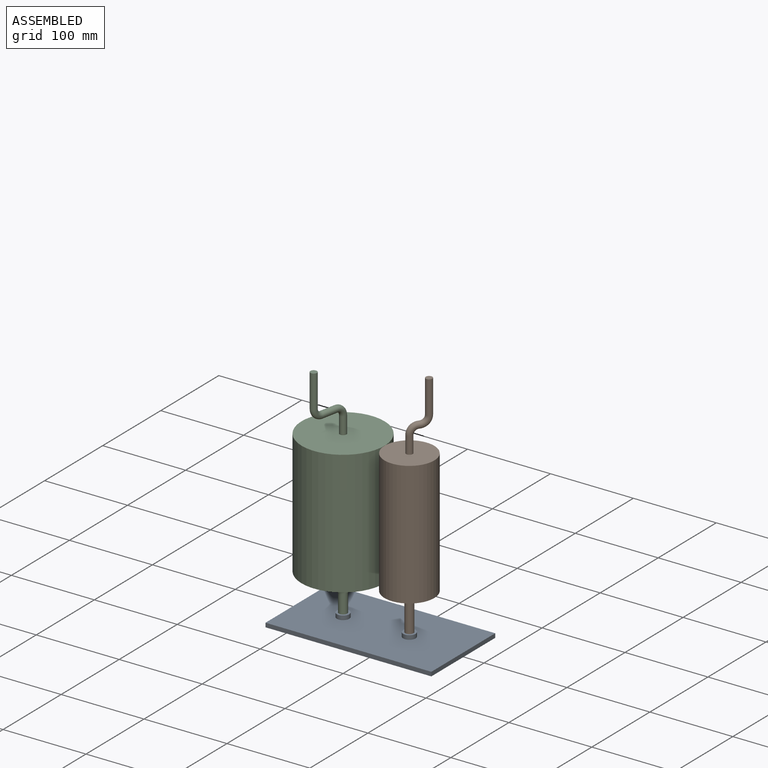
[diagram: assembled view]
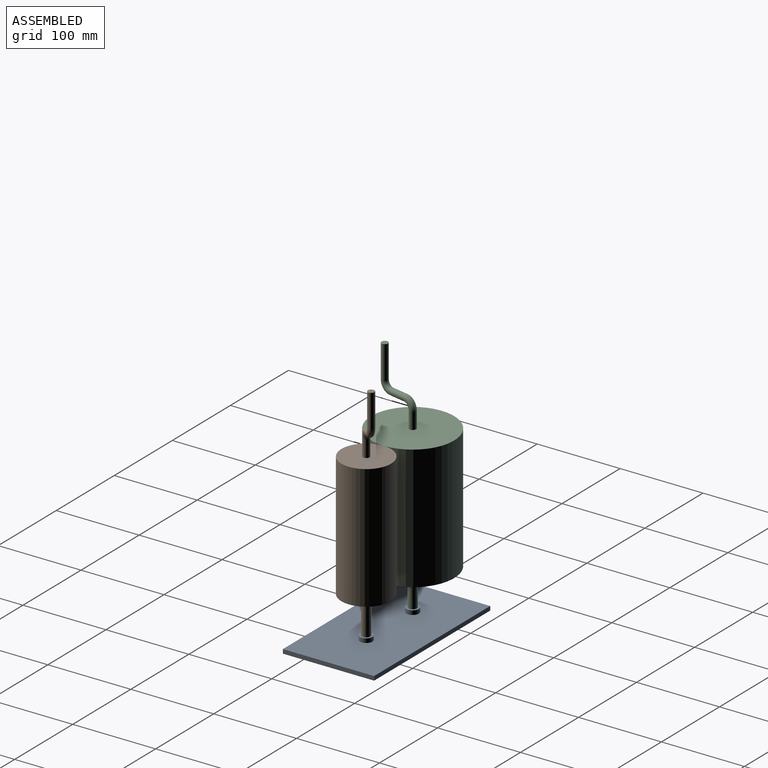
[diagram: assembled view, second angle]
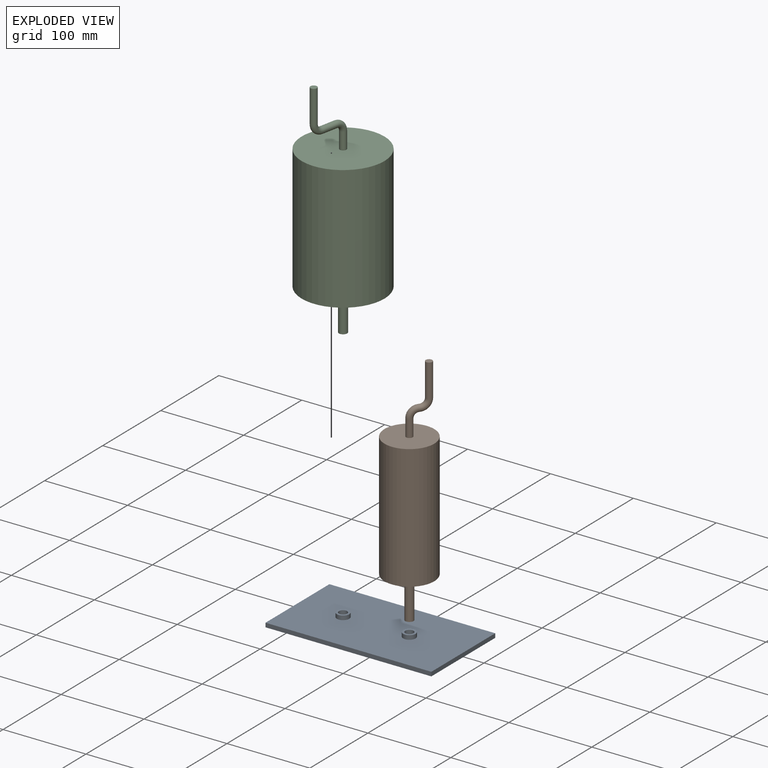
[diagram: exploded view]
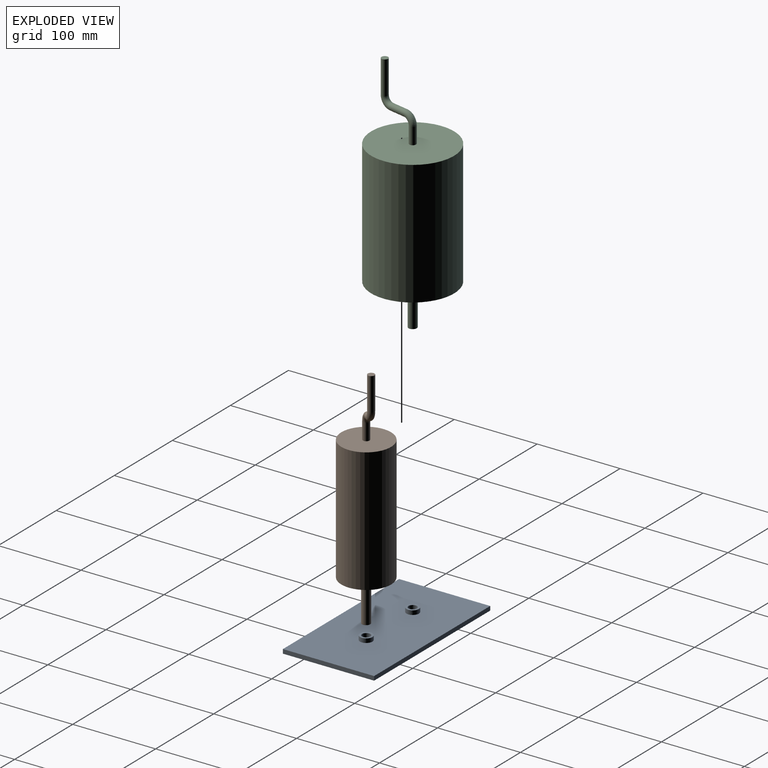
[diagram: exploded view, second angle]
ASSEMBLY  parts=3 mates=2
PART A: 14 faces, bbox 200x110x10 mm
  f0: plane 200x5mm, normal (0,-1,0), area 1000mm2, adj f1,f3,f4,f5
  f1: plane 110x5mm, normal (1,0,0), area 550mm2, adj f0,f2,f4,f5
  f2: plane 200x5mm, normal (0,1,0), area 1000mm2, adj f1,f3,f4,f5
  f3: plane 110x5mm, normal (-1,0,0), area 550mm2, adj f0,f2,f4,f5
  f4: plane 200x110mm, normal (0,0,-1), area 22000mm2, adj f0,f1,f2,f3
  f5: plane 200x110mm, normal (0,0,1), area 21646.6mm2, adj f0,f1,f2,f3,f7,f11
  f6: cylinder r=5mm len=10mm, axis (0,0,-1), area 157.1mm2, adj f8,f9
  f7: cylinder r=7.5mm len=15mm, axis (0,0,-1), area 235.6mm2, adj f5,f8
  f8: plane 15x15mm, normal (0,0,1), area 98.2mm2, adj f6,f7
  f9: plane 10x10mm, normal (0,0,1), area 78.5mm2, adj f6
  f10: cylinder r=5mm len=10mm, axis (0,0,-1), area 157.1mm2, adj f12,f13
  f11: cylinder r=7.5mm len=15mm, axis (0,0,-1), area 235.6mm2, adj f5,f12
  f12: plane 15x15mm, normal (0,0,1), area 98.2mm2, adj f10,f11
  f13: plane 10x10mm, normal (0,0,1), area 78.5mm2, adj f10
PART B: 10 faces, bbox 60x60x280 mm
  f0: cylinder r=5mm len=50mm, axis (0,0,-1), area 1570.8mm2, adj f1,f3
  f1: plane 10x10mm, normal (0,0,-1), area 78.5mm2, adj f0
  f2: cylinder r=30mm len=150mm, axis (0,0,-1), area 28274.3mm2, adj f3,f4
  f3: plane 60x60mm, normal (0,0,-1), area 2748.9mm2, adj f0,f2
  f4: plane 60x60mm, normal (0,0,1), area 2777.2mm2, adj f2,f6
  f5: plane 8x8mm, normal (0,0,1), area 50.3mm2, adj f9
  f6: cylinder r=4mm len=20mm, axis (0,0,1), area 502.7mm2, adj f4,f7
  f7: torus R=10mm, axis (0,1,0), area 394.8mm2, adj f6,f8
  f8: torus R=10mm, axis (0,-1,0), area 394.8mm2, adj f7,f9
  f9: cylinder r=4mm len=40mm, axis (0,0,1), area 1005.3mm2, adj f5,f8
PART C: 11 faces, bbox 100x100x280 mm
  f0: cylinder r=5mm len=50mm, axis (0,0,-1), area 1570.8mm2, adj f1,f3
  f1: plane 10x10mm, normal (0,0,-1), area 78.5mm2, adj f0
  f2: cylinder r=50mm len=150mm, axis (0,0,-1), area 47123.9mm2, adj f3,f4
  f3: plane 100x100mm, normal (0,0,-1), area 7775.4mm2, adj f0,f2
  f4: plane 100x100mm, normal (0,0,1), area 7803.7mm2, adj f2,f6
  f5: plane 8x8mm, normal (0,0,1), area 50.3mm2, adj f10
  f6: cylinder r=4mm len=20mm, axis (0,0,1), area 502.7mm2, adj f4,f7
  f7: torus R=10mm, axis (0,1,0), area 394.8mm2, adj f6,f8
  f8: cylinder r=4mm len=20mm, axis (1,0,0), area 502.7mm2, adj f7,f9
  f9: torus R=10mm, axis (0,-1,0), area 394.8mm2, adj f8,f10
  f10: cylinder r=4mm len=40mm, axis (0,0,1), area 1005.3mm2, adj f5,f9
PLACE A at identity fixed
PLACE B rot(axis=(0,0,1),49.1deg) t=(80,0,0)mm
PLACE C rot(axis=(0,0,-1),101.4deg) t=(0,0,0)mm
MATE revolute A.f7 <-> C.f0  axis (0,0,1) through (0,0,0)mm
MATE revolute A.f10 <-> B.f0  axis (0,0,1) through (80,0,0)mm
